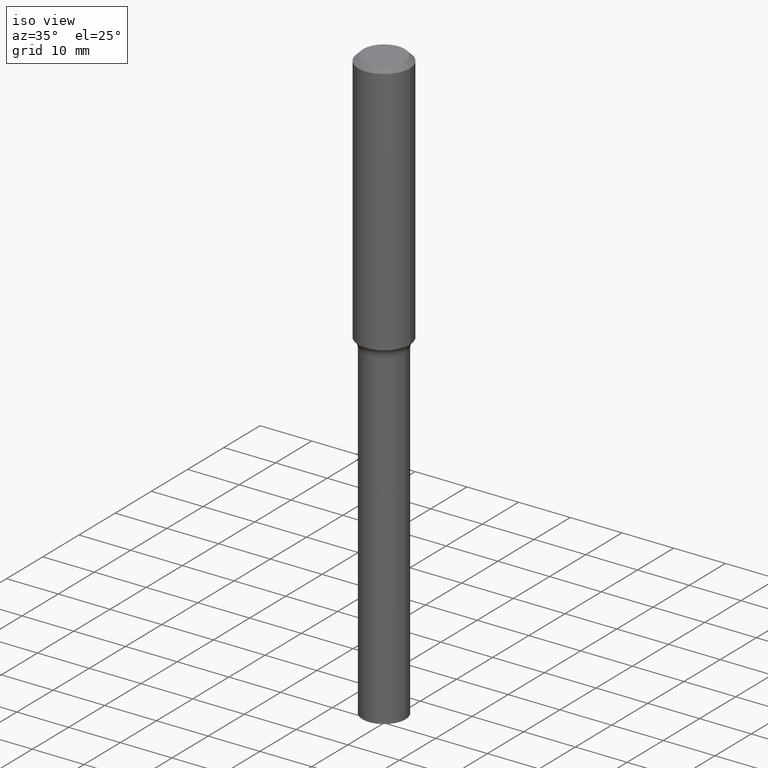
[diagram: clean part render]
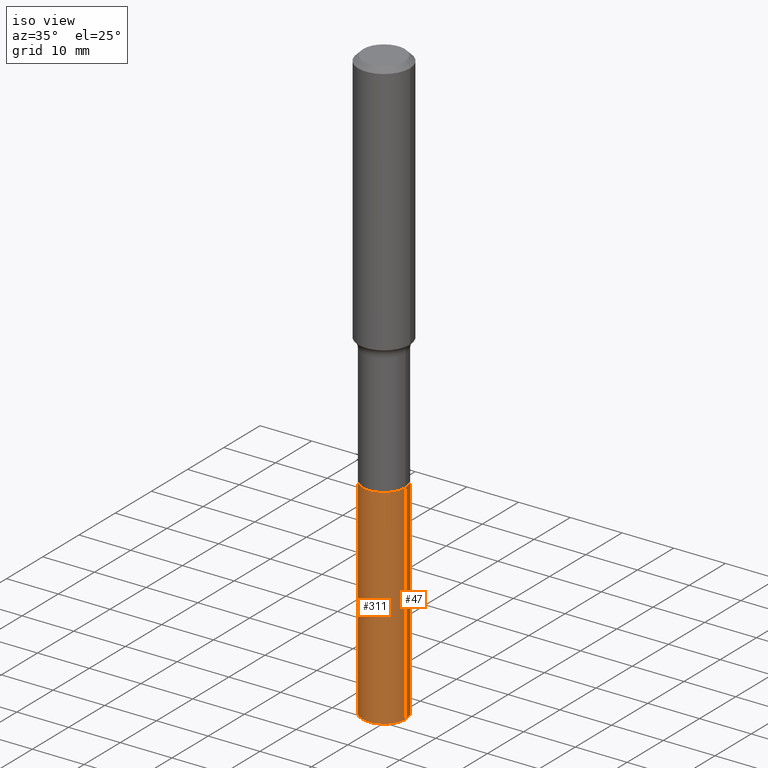
[diagram: same view with one multi-face feature highlighted, each face labeled with its STEP entity id]
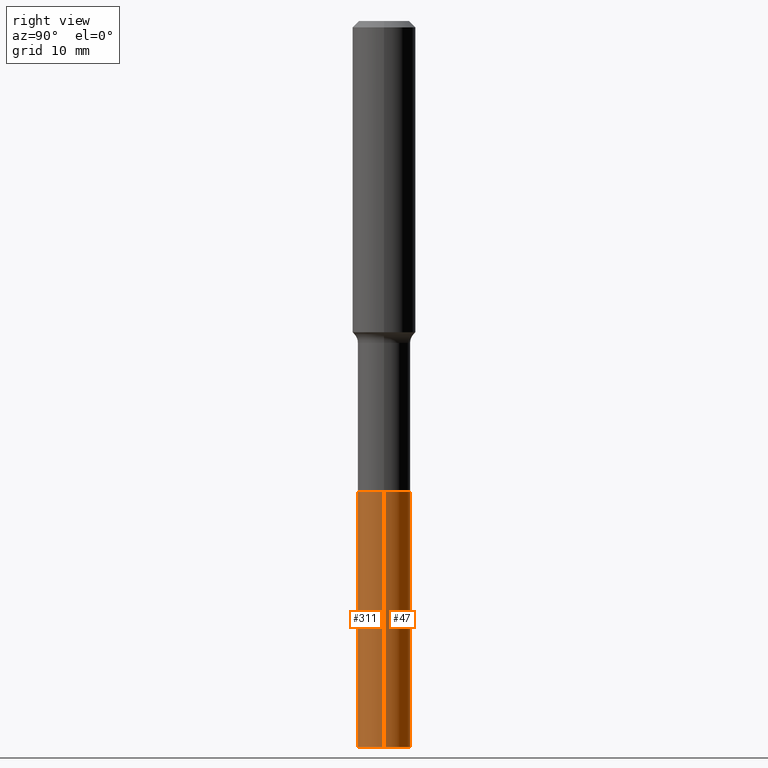
[diagram: same view with one multi-face feature highlighted, each face labeled with its STEP entity id]
A machine part, iso view. The highlighted faces form ONE feature: a constant-radius fillet chain: 2 tangent blend faces with common blend radius 4.1669 mm. The faces share edges in the B-rep.
A second angle (right view) of the same feature is appended — it is thin or edge-on in the first view.
Their STEP definitions:
[1] entity #311 (Cylinder):
#10 = LINE ( 'NONE', #417, #137 ) ;
#16 = DIRECTION ( 'NONE',  ( -2.445468806185136877E-29, 3.491481338843145188E-15, 1.000000000000000000 ) ) ;
#21 = CARTESIAN_POINT ( 'NONE',  ( 0.1640500000000000014, -1.138816468290468366E-14, -2.933599999999999763 ) ) ;
#51 = AXIS2_PLACEMENT_3D ( 'NONE', #76, #67, #235 ) ;
#67 = DIRECTION ( 'NONE',  ( -2.445468806185136597E-29, 3.491481338843145583E-15, 1.000000000000000000 ) ) ;
#73 = CARTESIAN_POINT ( 'NONE',  ( 0.1640500000000000014, -1.695358593702065635E-14, -4.527599999999999625 ) ) ;
#76 = CARTESIAN_POINT ( 'NONE',  ( 1.107210456688382298E-28, -1.580803090974622389E-14, -4.527599999999999625 ) ) ;
#96 = DIRECTION ( 'NONE',  ( -2.445468806185136597E-29, 3.491481338843145583E-15, 1.000000000000000000 ) ) ;
#108 = DIRECTION ( 'NONE',  ( 1.000000000000000000, -6.982962677686270655E-15, 0.000000000000000000 ) ) ;
#137 = VECTOR ( 'NONE', #16, 39.37007874015748143 ) ;
#140 = DIRECTION ( 'NONE',  ( -2.445468806185136877E-29, 3.491481338843145188E-15, 1.000000000000000000 ) ) ;
#172 = VERTEX_POINT ( 'NONE', #73 ) ;
#175 = VERTEX_POINT ( 'NONE', #394 ) ;
#177 = CARTESIAN_POINT ( 'NONE',  ( 0.1640500000000000014, -1.138816468290468366E-14, -2.933599999999999763 ) ) ;
#189 = EDGE_CURVE ( 'NONE', #406, #172, #294, .T. ) ;
#235 = DIRECTION ( 'NONE',  ( 1.000000000000000000, -6.982962677686270655E-15, 0.000000000000000000 ) ) ;
#245 = CARTESIAN_POINT ( 'NONE',  ( 7.174027289824715126E-29, -1.024260965563025121E-14, -2.933599999999999763 ) ) ;
#253 = VECTOR ( 'NONE', #140, 39.37007874015748143 ) ;
#256 = EDGE_CURVE ( 'NONE', #406, #175, #10, .T. ) ;
#259 = CIRCLE ( 'NONE', #467, 0.1640500000000000014 ) ;
#260 = CYLINDRICAL_SURFACE ( 'NONE', #496, 0.1640500000000000014 ) ;
#269 = ORIENTED_EDGE ( 'NONE', *, *, #256, .F. ) ;
#282 = DIRECTION ( 'NONE',  ( 1.000000000000000000, -6.982962677686270655E-15, 0.000000000000000000 ) ) ;
#289 = VERTEX_POINT ( 'NONE', #21 ) ;
#294 = CIRCLE ( 'NONE', #51, 0.1640500000000000014 ) ;
#311 = ADVANCED_FACE ( 'NONE', ( #338 ), #260, .T. ) ;
#338 = FACE_OUTER_BOUND ( 'NONE', #364, .T. ) ;
#342 = LINE ( 'NONE', #177, #253 ) ;
#364 = EDGE_LOOP ( 'NONE', ( #269, #440, #404, #455 ) ) ;
#394 = CARTESIAN_POINT ( 'NONE',  ( -0.1640500000000000014, -1.185967492467379220E-14, -2.933599999999999763 ) ) ;
#395 = DIRECTION ( 'NONE',  ( -2.445468806185136597E-29, 3.491481338843145583E-15, 1.000000000000000000 ) ) ;
#398 = EDGE_CURVE ( 'NONE', #172, #289, #342, .T. ) ;
#404 = ORIENTED_EDGE ( 'NONE', *, *, #398, .T. ) ;
#406 = VERTEX_POINT ( 'NONE', #456 ) ;
#417 = CARTESIAN_POINT ( 'NONE',  ( -0.1640500000000000014, -9.076964297615805074E-15, -2.933599999999999763 ) ) ;
#440 = ORIENTED_EDGE ( 'NONE', *, *, #189, .T. ) ;
#443 = EDGE_CURVE ( 'NONE', #175, #289, #259, .T. ) ;
#454 = CARTESIAN_POINT ( 'NONE',  ( 7.174027289824715126E-29, -1.024260965563025121E-14, -2.933599999999999763 ) ) ;
#455 = ORIENTED_EDGE ( 'NONE', *, *, #443, .F. ) ;
#456 = CARTESIAN_POINT ( 'NONE',  ( -0.1640500000000000014, -1.185967492467379220E-14, -4.527599999999999625 ) ) ;
#467 = AXIS2_PLACEMENT_3D ( 'NONE', #245, #395, #282 ) ;
#496 = AXIS2_PLACEMENT_3D ( 'NONE', #454, #96, #108 ) ;
[2] entity #47 (Cylinder):
#4 = ORIENTED_EDGE ( 'NONE', *, *, #410, .F. ) ;
#10 = LINE ( 'NONE', #417, #137 ) ;
#16 = DIRECTION ( 'NONE',  ( -2.445468806185136877E-29, 3.491481338843145188E-15, 1.000000000000000000 ) ) ;
#21 = CARTESIAN_POINT ( 'NONE',  ( 0.1640500000000000014, -1.138816468290468366E-14, -2.933599999999999763 ) ) ;
#27 = AXIS2_PLACEMENT_3D ( 'NONE', #267, #227, #378 ) ;
#47 = ADVANCED_FACE ( 'NONE', ( #305 ), #58, .T. ) ;
#58 = CYLINDRICAL_SURFACE ( 'NONE', #247, 0.1640500000000000014 ) ;
#73 = CARTESIAN_POINT ( 'NONE',  ( 0.1640500000000000014, -1.695358593702065635E-14, -4.527599999999999625 ) ) ;
#87 = EDGE_LOOP ( 'NONE', ( #485, #383, #4, #92 ) ) ;
#92 = ORIENTED_EDGE ( 'NONE', *, *, #398, .F. ) ;
#137 = VECTOR ( 'NONE', #16, 39.37007874015748143 ) ;
#140 = DIRECTION ( 'NONE',  ( -2.445468806185136877E-29, 3.491481338843145188E-15, 1.000000000000000000 ) ) ;
#172 = VERTEX_POINT ( 'NONE', #73 ) ;
#175 = VERTEX_POINT ( 'NONE', #394 ) ;
#177 = CARTESIAN_POINT ( 'NONE',  ( 0.1640500000000000014, -1.138816468290468366E-14, -2.933599999999999763 ) ) ;
#191 = AXIS2_PLACEMENT_3D ( 'NONE', #248, #205, #439 ) ;
#205 = DIRECTION ( 'NONE',  ( -2.445468806185136597E-29, 3.491481338843145583E-15, 1.000000000000000000 ) ) ;
#219 = EDGE_CURVE ( 'NONE', #172, #406, #409, .T. ) ;
#227 = DIRECTION ( 'NONE',  ( -2.445468806185136597E-29, 3.491481338843145583E-15, 1.000000000000000000 ) ) ;
#247 = AXIS2_PLACEMENT_3D ( 'NONE', #257, #370, #498 ) ;
#248 = CARTESIAN_POINT ( 'NONE',  ( 1.107210456688382298E-28, -1.580803090974622389E-14, -4.527599999999999625 ) ) ;
#253 = VECTOR ( 'NONE', #140, 39.37007874015748143 ) ;
#256 = EDGE_CURVE ( 'NONE', #406, #175, #10, .T. ) ;
#257 = CARTESIAN_POINT ( 'NONE',  ( 7.174027289824715126E-29, -1.024260965563025121E-14, -2.933599999999999763 ) ) ;
#267 = CARTESIAN_POINT ( 'NONE',  ( 7.174027289824715126E-29, -1.024260965563025121E-14, -2.933599999999999763 ) ) ;
#289 = VERTEX_POINT ( 'NONE', #21 ) ;
#305 = FACE_OUTER_BOUND ( 'NONE', #87, .T. ) ;
#342 = LINE ( 'NONE', #177, #253 ) ;
#370 = DIRECTION ( 'NONE',  ( -2.445468806185136597E-29, 3.491481338843145583E-15, 1.000000000000000000 ) ) ;
#378 = DIRECTION ( 'NONE',  ( 1.000000000000000000, -6.982962677686270655E-15, 0.000000000000000000 ) ) ;
#383 = ORIENTED_EDGE ( 'NONE', *, *, #256, .T. ) ;
#388 = CIRCLE ( 'NONE', #27, 0.1640500000000000014 ) ;
#394 = CARTESIAN_POINT ( 'NONE',  ( -0.1640500000000000014, -1.185967492467379220E-14, -2.933599999999999763 ) ) ;
#398 = EDGE_CURVE ( 'NONE', #172, #289, #342, .T. ) ;
#406 = VERTEX_POINT ( 'NONE', #456 ) ;
#409 = CIRCLE ( 'NONE', #191, 0.1640500000000000014 ) ;
#410 = EDGE_CURVE ( 'NONE', #289, #175, #388, .T. ) ;
#417 = CARTESIAN_POINT ( 'NONE',  ( -0.1640500000000000014, -9.076964297615805074E-15, -2.933599999999999763 ) ) ;
#439 = DIRECTION ( 'NONE',  ( 1.000000000000000000, -6.982962677686270655E-15, 0.000000000000000000 ) ) ;
#456 = CARTESIAN_POINT ( 'NONE',  ( -0.1640500000000000014, -1.185967492467379220E-14, -4.527599999999999625 ) ) ;
#485 = ORIENTED_EDGE ( 'NONE', *, *, #219, .T. ) ;
#498 = DIRECTION ( 'NONE',  ( 1.000000000000000000, -6.982962677686270655E-15, 0.000000000000000000 ) ) ;